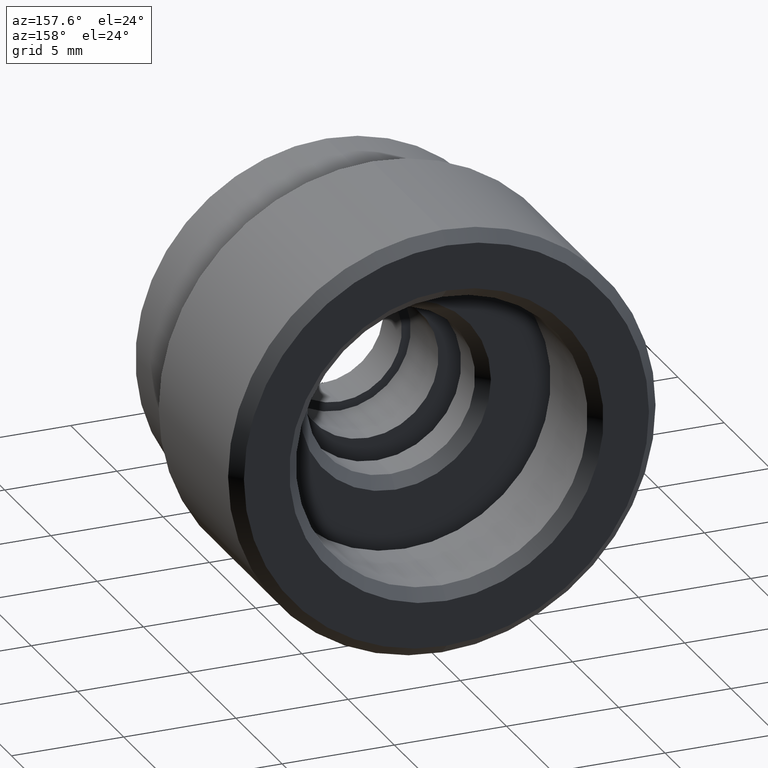
[diagram: clean part render]
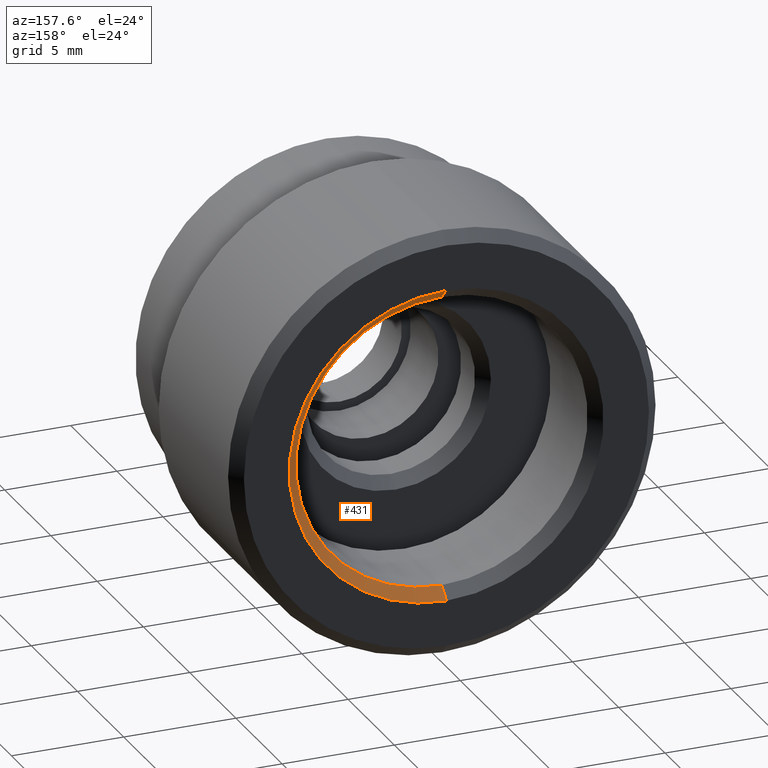
[diagram: same view with one face highlighted and labeled with its STEP entity id]
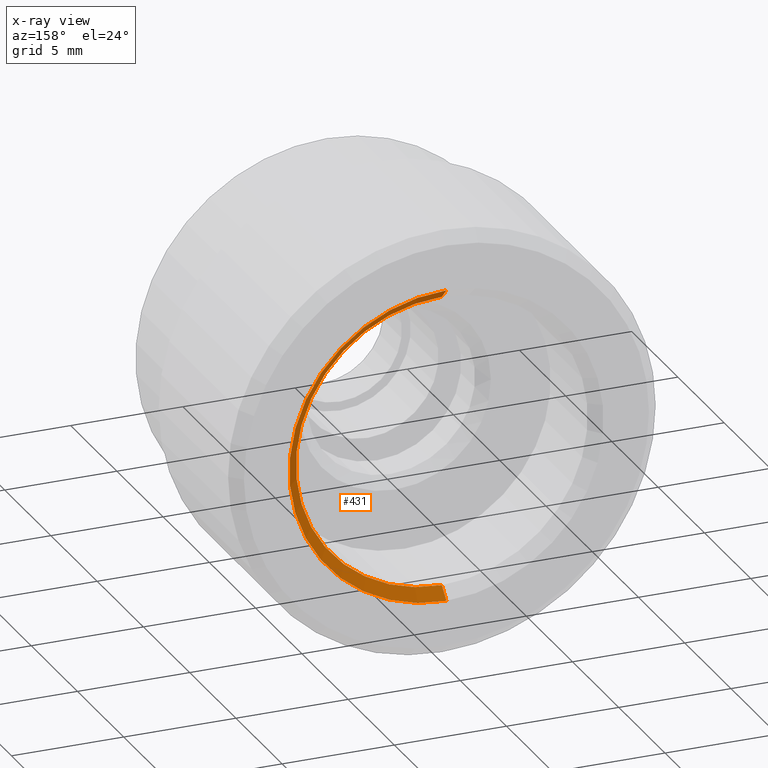
[diagram: x-ray of the same camera — body ghosted, the highlighted face saturated]
A machine part, auxiliary view. The second image highlights one B-rep face of the part: STEP entity #431.
The next image is the same camera in x-ray: the body ghosted, the highlighted face saturated — about 0% of this face is hidden behind the body in this view.
In plain terms, the highlighted conical surface has half-angle 45 deg.
Its self-contained STEP definition (entity closure, byte-faithful):
#73 = DIRECTION ( 'NONE',  ( -0.0000000000000000000, 1.000000000000000000, -0.0000000000000000000 ) ) ;
#75 = DIRECTION ( 'NONE',  ( 0.0000000000000000000, 0.0000000000000000000, 1.000000000000000000 ) ) ;
#84 = EDGE_LOOP ( 'NONE', ( #520, #633, #722, #1107 ) ) ;
#91 = DIRECTION ( 'NONE',  ( 0.0000000000000000000, 0.7071067811865505700, 0.7071067811865444600 ) ) ;
#108 = EDGE_CURVE ( 'NONE', #1040, #809, #465, .T. ) ;
#135 = CARTESIAN_POINT ( 'NONE',  ( 0.0000000000000000000, 13.50000000000000000, 0.0000000000000000000 ) ) ;
#148 = CARTESIAN_POINT ( 'NONE',  ( 0.0000000000000000000, 12.99999999999999800, -6.500000000000000000 ) ) ;
#161 = CARTESIAN_POINT ( 'NONE',  ( 8.572527594031470200E-016, 13.50000000000000000, -6.999999999999997300 ) ) ;
#183 = CARTESIAN_POINT ( 'NONE',  ( 8.572527594031470200E-016, 13.50000000000000000, -6.999999999999997300 ) ) ;
#293 = DIRECTION ( 'NONE',  ( -0.0000000000000000000, 1.000000000000000000, -0.0000000000000000000 ) ) ;
#316 = DIRECTION ( 'NONE',  ( 8.659560562354895900E-017, 0.7071067811865505700, -0.7071067811865444600 ) ) ;
#341 = VERTEX_POINT ( 'NONE', #670 ) ;
#348 = VECTOR ( 'NONE', #91, 1000.000000000000000 ) ;
#392 = DIRECTION ( 'NONE',  ( 0.0000000000000000000, 0.0000000000000000000, 1.000000000000000000 ) ) ;
#431 = ADVANCED_FACE ( 'NONE', ( #1093 ), #654, .F. ) ;
#440 = LINE ( 'NONE', #686, #348 ) ;
#465 = LINE ( 'NONE', #183, #931 ) ;
#520 = ORIENTED_EDGE ( 'NONE', *, *, #108, .F. ) ;
#571 = AXIS2_PLACEMENT_3D ( 'NONE', #926, #73, #933 ) ;
#621 = VERTEX_POINT ( 'NONE', #1019 ) ;
#633 = ORIENTED_EDGE ( 'NONE', *, *, #855, .F. ) ;
#654 = CONICAL_SURFACE ( 'NONE', #571, 6.999999999999997300, 0.7853981633974439500 ) ;
#661 = DIRECTION ( 'NONE',  ( -0.0000000000000000000, -1.000000000000000000, -0.0000000000000000000 ) ) ;
#670 = CARTESIAN_POINT ( 'NONE',  ( 0.0000000000000000000, 13.50000000000000000, 6.999999999999997300 ) ) ;
#686 = CARTESIAN_POINT ( 'NONE',  ( 0.0000000000000000000, 13.50000000000000000, 6.999999999999997300 ) ) ;
#707 = CIRCLE ( 'NONE', #791, 6.500000000000000000 ) ;
#722 = ORIENTED_EDGE ( 'NONE', *, *, #1092, .T. ) ;
#782 = AXIS2_PLACEMENT_3D ( 'NONE', #135, #661, #392 ) ;
#785 = CIRCLE ( 'NONE', #782, 6.999999999999997300 ) ;
#791 = AXIS2_PLACEMENT_3D ( 'NONE', #984, #293, #75 ) ;
#809 = VERTEX_POINT ( 'NONE', #161 ) ;
#855 = EDGE_CURVE ( 'NONE', #621, #1040, #707, .T. ) ;
#896 = EDGE_CURVE ( 'NONE', #809, #341, #785, .T. ) ;
#926 = CARTESIAN_POINT ( 'NONE',  ( 0.0000000000000000000, 13.50000000000000000, 0.0000000000000000000 ) ) ;
#931 = VECTOR ( 'NONE', #316, 1000.000000000000000 ) ;
#933 = DIRECTION ( 'NONE',  ( 0.0000000000000000000, 0.0000000000000000000, 1.000000000000000000 ) ) ;
#984 = CARTESIAN_POINT ( 'NONE',  ( 0.0000000000000000000, 12.99999999999999800, 0.0000000000000000000 ) ) ;
#1019 = CARTESIAN_POINT ( 'NONE',  ( 7.960204194457795500E-016, 12.99999999999999800, 6.500000000000000000 ) ) ;
#1040 = VERTEX_POINT ( 'NONE', #148 ) ;
#1092 = EDGE_CURVE ( 'NONE', #621, #341, #440, .T. ) ;
#1093 = FACE_OUTER_BOUND ( 'NONE', #84, .T. ) ;
#1107 = ORIENTED_EDGE ( 'NONE', *, *, #896, .F. ) ;